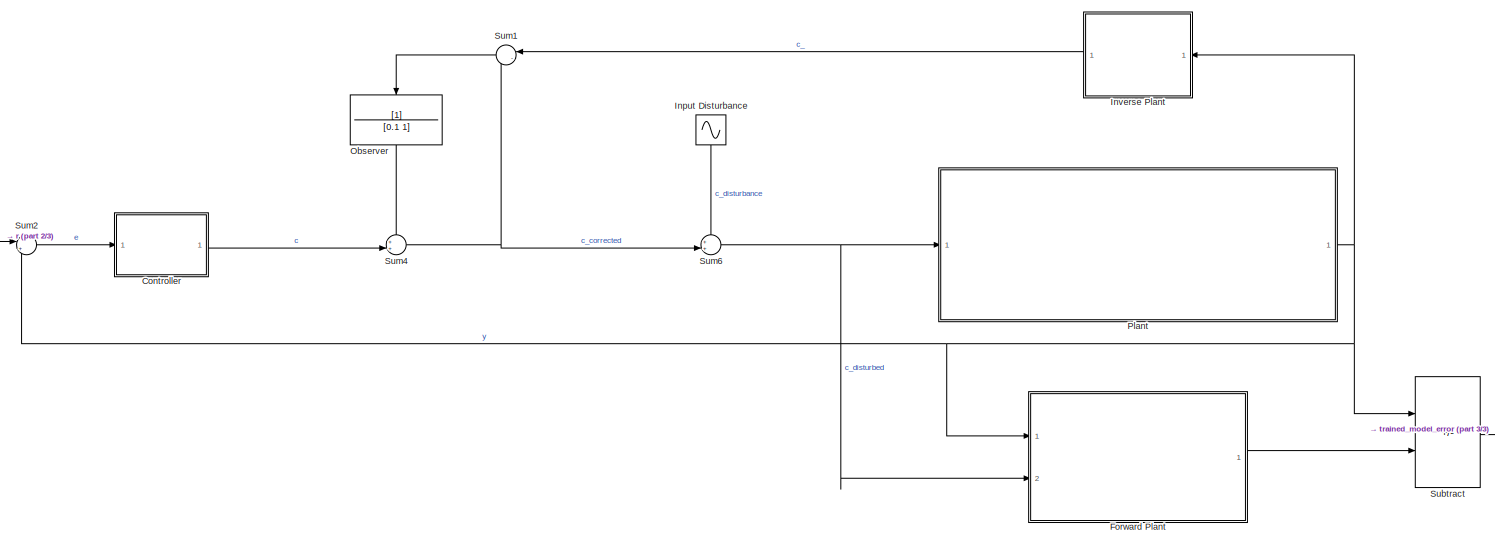
[diagram: root canvas - part 1/3, most of the canvas]
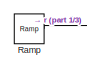
[diagram: root canvas - part 2/3, middle left region]
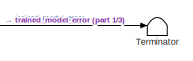
[diagram: root canvas - part 3/3, bottom right region]
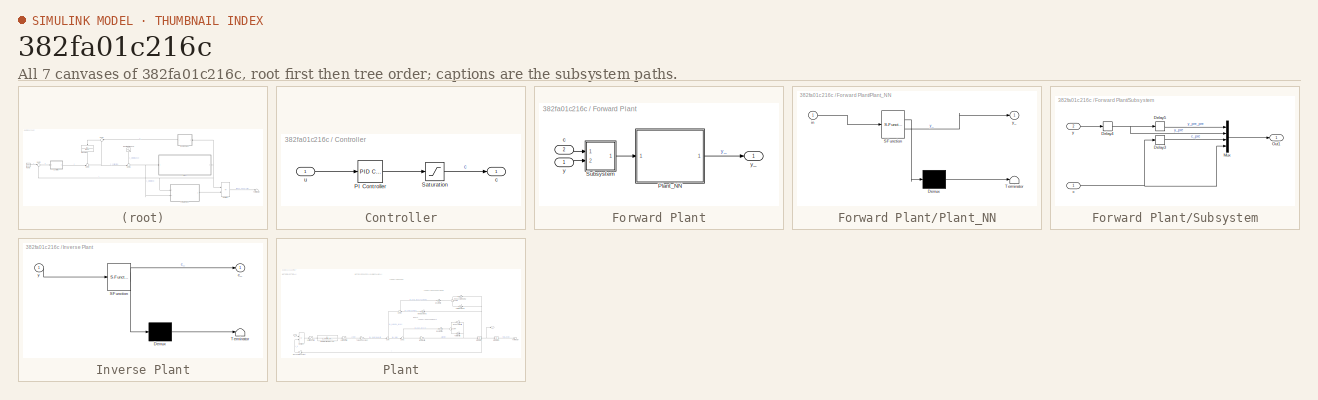
[diagram: thumbnail index - all 7 canvases of the model, root first then tree order]
MODEL slx_382fa01c216c
KIND model
CONFIG AbsTol = auto
CONFIG EnableMultiTasking = off
CONFIG FixedStep = auto
CONFIG MaxStep = auto
CONFIG MinStep = auto
CONFIG RelTol = 1e-3
CONFIG SampleTimeConstraint = Unconstrained
CONFIG SolverName = VariableStepAuto
CONFIG StartTime = 0.0
CONFIG StopTime = 10
BLOCK [SubSystem] Controller
  NameLocation = top
  Ports = [1, 1]
BLOCK [Reference] Controller/PI Controller  REF=slpidlib/PID Controller
  NameLocation = top
  Ports = [1, 1]
  SourceBlock = slpidlib/PID Controller
  SourceType = PID 1dof
BLOCK [Saturate] Controller/Saturation
  LowerLimit = -28
  NameLocation = top
  UpperLimit = 28
BLOCK [Outport] Controller/c
BLOCK [Inport] Controller/u
BLOCK [SubSystem] Forward Plant
  NameLocation = top
  Ports = [2, 1]
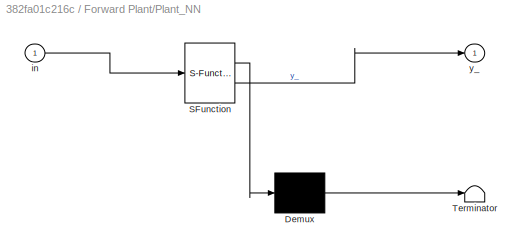
BLOCK [SubSystem] Forward Plant/Plant_NN
  ErrorFcn = Stateflow.Translate.translate
  PermitHierarchicalResolution = ExplicitOnly
  Ports = [1, 1]
  SFBlockType = MATLAB Function
  TreatAsAtomicUnit = on
BLOCK [Demux] Forward Plant/Plant_NN/ Demux 
  Outputs = 1
  Ports = [1, 1]
BLOCK [S-Function] Forward Plant/Plant_NN/ SFunction 
  EnableBusSupport = on
  FunctionName = sf_sfun
  PortCounts = [1 2]
  Ports = [1, 2]
  SFcnIsStateOwnerBlock = off
  SFunctionDeploymentMode = off
  Tag = Stateflow S-Function 1
BLOCK [Terminator] Forward Plant/Plant_NN/ Terminator 
BLOCK [Inport] Forward Plant/Plant_NN/in
BLOCK [Outport] Forward Plant/Plant_NN/y_
BLOCK [SubSystem] Forward Plant/Subsystem
  Ports = [2, 1]
BLOCK [Delay] Forward Plant/Subsystem/Delay3
  DelayLength = 1
  InputPortMap = u0
  Ports = [1, 1]
  SampleTime = 0.01
BLOCK [Delay] Forward Plant/Subsystem/Delay4
  DelayLength = 1
  InputPortMap = u0
  Ports = [1, 1]
  SampleTime = 0.01
BLOCK [Delay] Forward Plant/Subsystem/Delay5
  DelayLength = 1
  InputPortMap = u0
  Ports = [1, 1]
  SampleTime = 0.01
BLOCK [Mux] Forward Plant/Subsystem/Mux
  DisplayOption = bar
  Ports = [4, 1]
BLOCK [Outport] Forward Plant/Subsystem/Out1
BLOCK [Inport] Forward Plant/Subsystem/c
BLOCK [Inport] Forward Plant/Subsystem/y
  Port = 2
BLOCK [Inport] Forward Plant/c
  NameLocation = top
  Port = 2
BLOCK [Inport] Forward Plant/y
BLOCK [Outport] Forward Plant/y_
BLOCK [Sin] Input Disturbance
  NameLocation = top
  Ports = [0, 1]
  SampleTime = 0
BLOCK [SubSystem] Inverse Plant
  ErrorFcn = Stateflow.Translate.translate
  NameLocation = top
  PermitHierarchicalResolution = ExplicitOnly
  Ports = [1, 1]
  SFBlockType = MATLAB Function
  TreatAsAtomicUnit = on
BLOCK [Demux] Inverse Plant/ Demux 
  Outputs = 1
  Ports = [1, 1]
BLOCK [S-Function] Inverse Plant/ SFunction 
  EnableBusSupport = on
  FunctionName = sf_sfun
  PortCounts = [1 2]
  Ports = [1, 2]
  SFcnIsStateOwnerBlock = off
  SFunctionDeploymentMode = off
  Tag = Stateflow S-Function 2
BLOCK [Terminator] Inverse Plant/ Terminator 
BLOCK [Outport] Inverse Plant/c_
BLOCK [Inport] Inverse Plant/y
BLOCK [TransferFcn] Observer
  Denominator = [0.1 1]
  NameLocation = left
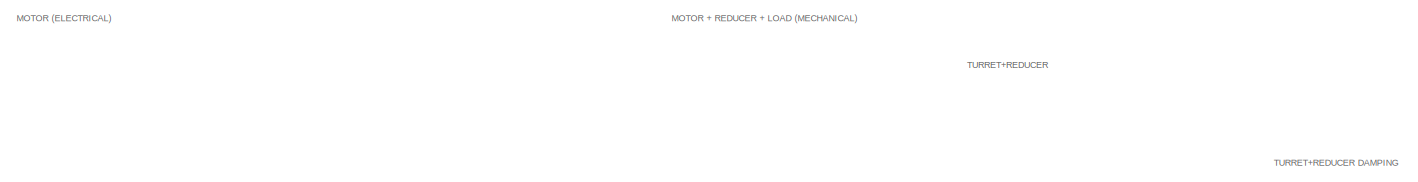
[diagram: Plant - part 1/3, top center region]
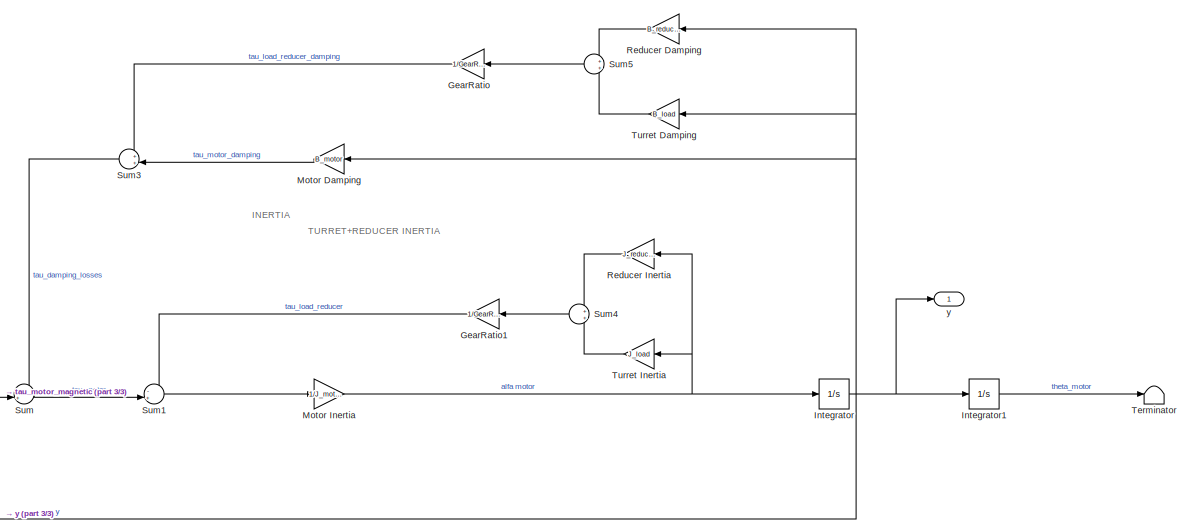
[diagram: Plant - part 2/3, middle right region]
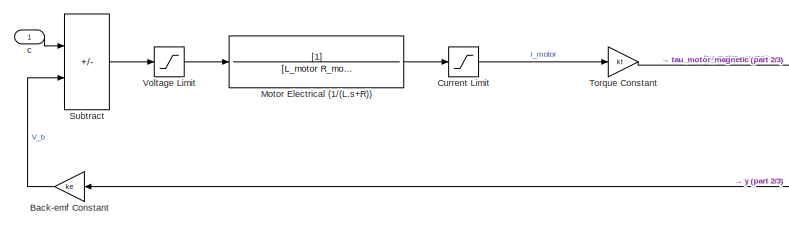
[diagram: Plant - part 3/3, bottom left region]
BLOCK [SubSystem] Plant
  NameLocation = top
  Ports = [1, 1]
BLOCK [Gain] Plant/Back-emf Constant
  Gain = ke
BLOCK [Saturate] Plant/Current Limit
  LowerLimit = -80
  UpperLimit = 80
BLOCK [Gain] Plant/GearRatio
  Gain = 1/GearRatio^2
BLOCK [Gain] Plant/GearRatio1
  Gain = 1/GearRatio^2
BLOCK [Integrator] Plant/Integrator
  Ports = [1, 1]
BLOCK [Integrator] Plant/Integrator1
  Ports = [1, 1]
BLOCK [Gain] Plant/Motor Damping
  Gain = B_motor
BLOCK [TransferFcn] Plant/Motor Electrical (1//(L.s+R))
  Denominator = [L_motor R_motor]
BLOCK [Gain] Plant/Motor Inertia
  Gain = 1/J_motor
BLOCK [Gain] Plant/Reducer Damping
  Gain = B_reducer
BLOCK [Gain] Plant/Reducer Inertia
  Gain = J_reducer
BLOCK [Sum] Plant/Subtract
  IconShape = rectangular
  Inputs = +-
  Ports = [2, 1]
BLOCK [Sum] Plant/Sum
  Inputs = -+|
  Ports = [2, 1]
BLOCK [Sum] Plant/Sum1
  Inputs = -+|
  Ports = [2, 1]
BLOCK [Sum] Plant/Sum3
  Inputs = ++|
  NameLocation = top
  Ports = [2, 1]
BLOCK [Sum] Plant/Sum4
  NameLocation = top
  Ports = [2, 1]
BLOCK [Sum] Plant/Sum5
  NameLocation = top
  Ports = [2, 1]
BLOCK [Terminator] Plant/Terminator
BLOCK [Gain] Plant/Torque Constant
  Gain = kt
BLOCK [Gain] Plant/Turret Damping
  Gain = B_load
BLOCK [Gain] Plant/Turret Inertia
  Gain = J_load
BLOCK [Saturate] Plant/Voltage Limit
  LowerLimit = -28
  UpperLimit = 28
BLOCK [Inport] Plant/c
BLOCK [Outport] Plant/y
BLOCK [Reference] Ramp  REF=simulink/Sources/Ramp
  NameLocation = top
  Ports = [0, 1]
  SourceBlock = simulink/Sources/Ramp
  SourceType = Ramp
BLOCK [Sum] Subtract
  IconShape = rectangular
  Inputs = +-
  Ports = [2, 1]
BLOCK [Sum] Sum1
  Inputs = |-+
  NameLocation = top
  Ports = [2, 1]
BLOCK [Sum] Sum2
  Inputs = |+-
  Ports = [2, 1]
BLOCK [Sum] Sum4
  Inputs = ++|
  Ports = [2, 1]
BLOCK [Sum] Sum6
  Inputs = ++|
  Ports = [2, 1]
BLOCK [Terminator] Terminator
ANNOTATION Plant: INERTIA
ANNOTATION Plant: MOTOR (ELECTRICAL)
ANNOTATION Plant: MOTOR + REDUCER + LOAD (MECHANICAL)
ANNOTATION Plant: TURRET+REDUCER
ANNOTATION Plant: TURRET+REDUCER DAMPING
ANNOTATION Plant: TURRET+REDUCER INERTIA
LINE Controller/PI Controller:1 -> Controller/Saturation:1
LINE Controller/Saturation:1 -> Controller/c:1
LINE Controller/u:1 -> Controller/PI Controller:1
LINE Controller:1 -> Sum4:2
LINE Forward Plant/Plant_NN:1 -> Forward Plant/y_:1
LINE Forward Plant/Subsystem/Delay3:1 -> Forward Plant/Subsystem/Mux:3
NET Forward Plant/Subsystem/Delay4:1 -> Forward Plant/Subsystem/Delay5:1, Forward Plant/Subsystem/Mux:2
LINE Forward Plant/Subsystem/Delay5:1 -> Forward Plant/Subsystem/Mux:1
LINE Forward Plant/Subsystem/Mux:1 -> Forward Plant/Subsystem/Out1:1
NET Forward Plant/Subsystem/c:1 -> Forward Plant/Subsystem/Delay3:1, Forward Plant/Subsystem/Mux:4
LINE Forward Plant/Subsystem/y:1 -> Forward Plant/Subsystem/Delay4:1
LINE Forward Plant/Subsystem:1 -> Forward Plant/Plant_NN:1
LINE Forward Plant/c:1 -> Forward Plant/Subsystem:1
LINE Forward Plant/y:1 -> Forward Plant/Subsystem:2
LINE Forward Plant:1 -> Subtract:2
LINE Input Disturbance:1 -> Sum6:1
LINE Inverse Plant:1 -> Sum1:1
LINE Observer:1 -> Sum4:1
LINE Plant/Back-emf Constant:1 -> Plant/Subtract:2
LINE Plant/Current Limit:1 -> Plant/Torque Constant:1
LINE Plant/GearRatio1:1 -> Plant/Sum1:1
LINE Plant/GearRatio:1 -> Plant/Sum3:1
LINE Plant/Integrator1:1 -> Plant/Terminator:1
NET Plant/Integrator:1 -> Plant/Back-emf Constant:1, Plant/Integrator1:1, Plant/Motor Damping:1, Plant/Reducer Damping:1, Plant/Turret Damping:1, Plant/y:1
LINE Plant/Motor Damping:1 -> Plant/Sum3:2
LINE Plant/Motor Electrical (1//(L.s+R)):1 -> Plant/Current Limit:1
NET Plant/Motor Inertia:1 -> Plant/Integrator:1, Plant/Reducer Inertia:1, Plant/Turret Inertia:1
LINE Plant/Reducer Damping:1 -> Plant/Sum5:1
LINE Plant/Reducer Inertia:1 -> Plant/Sum4:1
LINE Plant/Subtract:1 -> Plant/Voltage Limit:1
LINE Plant/Sum1:1 -> Plant/Motor Inertia:1
LINE Plant/Sum3:1 -> Plant/Sum:1
LINE Plant/Sum4:1 -> Plant/GearRatio1:1
LINE Plant/Sum5:1 -> Plant/GearRatio:1
LINE Plant/Sum:1 -> Plant/Sum1:2
LINE Plant/Torque Constant:1 -> Plant/Sum:2
LINE Plant/Turret Damping:1 -> Plant/Sum5:2
LINE Plant/Turret Inertia:1 -> Plant/Sum4:2
LINE Plant/Voltage Limit:1 -> Plant/Motor Electrical (1//(L.s+R)):1
LINE Plant/c:1 -> Plant/Subtract:1
NET Plant:1 -> Forward Plant:1, Inverse Plant:1, Subtract:1, Sum2:2
LINE Ramp:1 -> Sum2:1
LINE Subtract:1 -> Terminator:1
LINE Sum1:1 -> Observer:1
LINE Sum2:1 -> Controller:1
NET Sum4:1 -> Sum1:2, Sum6:2
NET Sum6:1 -> Forward Plant:2, Plant:1
note: NET lines group one-source signal fan-out (src -> all destinations, sorted); 1:1 wires keep LINE
CHART Inverse Plant states=1 transitions=1
  STATE_LABEL 'eML_blk_kernel()'
  STATE_LABEL 'SCRIPT:\nfunction c_ = inverse_plant(y)\n    y_ =  0.0534; r_ = 16.0258;\n    c__ = 1.2811; r__ = 384.4721;\n    input_training = (y - c__)/r__;\n%     Phi = [ -0.7229   -0.1132         0         0\n%             -0.7229   -0.1132         0         0\n%             -0.7229   -0.1132         0         0\n%             -0.4882   -0.4882   -0.4882   -0.1223];\n    Phi = [    0.9934    0.0476    0.4243    0.78...<+378ch>'
CHART Forward Plant/Plant_NN states=1 transitions=1
  STATE_LABEL 'eML_blk_kernel()'
  STATE_LABEL 'SCRIPT:\nfunction y_ = forward_pass(in)\n    c_sf_i_4 = 0.0534;     r_sf_i_4 = 16.0258;\n    c_sf_i_3 = 0.0534;     r_sf_i_3 = 16.0258;\n    c_sf_i_2 = 1.2811;     r_sf_i_2 = 384.4721;\n    c_sf_i_1 = 1.2811;     r_sf_i_1 = 384.4721;\n    c_sf_o_1 = 1.28114;    r_sf_o_1 = 384.4721;\n    input_training = (([in(4) in(3) in(2) in(1)] - [c_sf_i_4 c_sf_i_3 c_sf_i_2 c_sf_i_1]) ./ [r_sf_i_4 r_sf_i_3 r_sf_i_2 r_...<+1514ch>'
CHART  states=0 transitions=0
CHART  states=0 transitions=0
